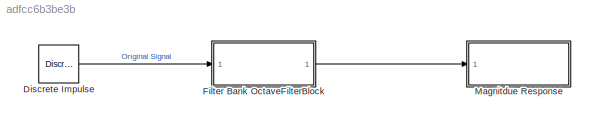
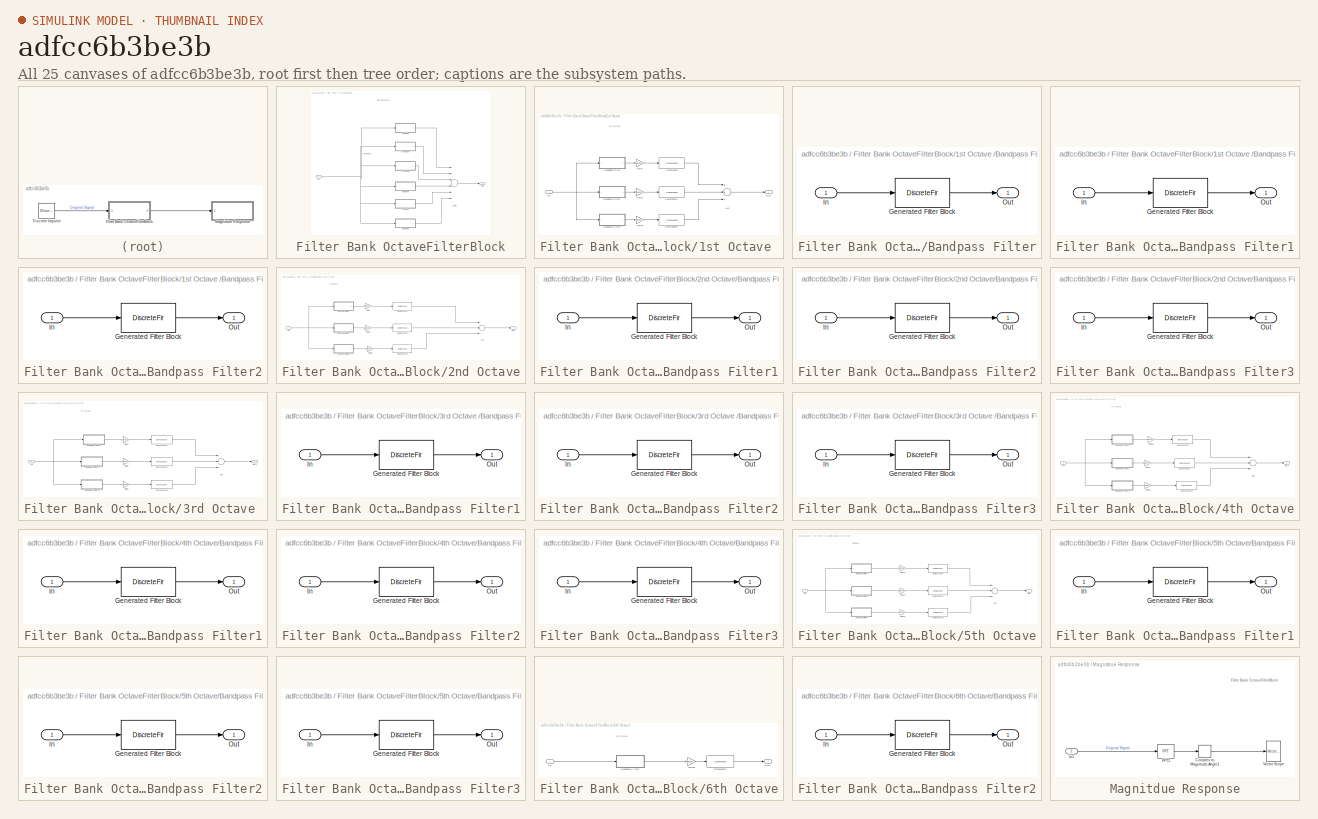
[diagram: thumbnail index - all 25 canvases of the model, root first then tree order]
MODEL slx_adfcc6b3be3b
KIND model
CONFIG AbsTol = auto
CONFIG EnableMultiTasking = off
CONFIG FixedStep = auto
CONFIG MaxStep = auto
CONFIG MinStep = auto
CONFIG RelTol = 1e-3
CONFIG SampleTimeConstraint = Unconstrained
CONFIG Solver = FixedStepDiscrete
CONFIG SolverName = FixedStepDiscrete
CONFIG StartTime = 0.0
CONFIG StopTime = 0.001
BLOCK [Reference] Discrete Impulse  REF=dspsrcs4/Discrete 
Impulse
  Ports = [0, 1]
  SourceBlock = dspsrcs4/Discrete \nImpulse
  SourceProductBaseCode = DS
  SourceProductName = DSP System Toolbox
  SourceType = Discrete Impulse
BLOCK [SubSystem] Filter Bank OctaveFilterBlock
  Ports = [1, 1]
  RequestExecContextInheritance = off
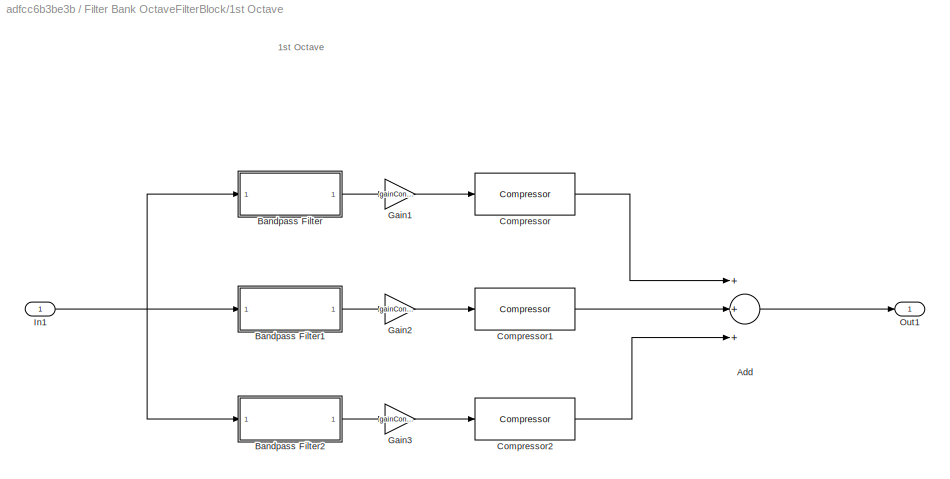
BLOCK [SubSystem] Filter Bank OctaveFilterBlock/1st Octave 
  Ports = [1, 1]
  RequestExecContextInheritance = off
BLOCK [Sum] Filter Bank OctaveFilterBlock/1st Octave /Add
  InputSameDT = off
  Inputs = +++
  OutDataTypeStr = Inherit: Inherit via internal rule
  Ports = [3, 1]
  SaturateOnIntegerOverflow = off
BLOCK [SubSystem] Filter Bank OctaveFilterBlock/1st Octave /Bandpass Filter
  CopyFcn = fdesignblkfcn(gcbh, {'CopyFcn'});
  DialogController = fdesignblkfcn
  InitFcn = fdesignblkfcn(gcbh, {'InitFcn'});
  Ports = [1, 1]
  RequestExecContextInheritance = off
  UserDataPersistent = on
BLOCK [DiscreteFir] Filter Bank OctaveFilterBlock/1st Octave /Bandpass Filter/Generated Filter Block
  Coefficients = [-0.000965498318512495964 0.00026458231611835569 0.000231623401463489461 0.000203518242535700831 0.000179319644531994205 0.000158734232687330533 0.000140983502414830728 0.000125924668649736487 0.000112905791154907934 0.000101901390265768797 9.23442832353972624e-05 8.43013348668057439e-05 7.72643068416356072e-05 7.13732098377806243e-05 6.61572888644548139e-05 6.18209253154341663e-05 5.7909419238867...<+37428ch>
  InputPortMap = u0
  InputProcessing = Columns as channels (frame based)
  OutputPortMap = o0
  Ports = [1, 1]
  Tag = BlockMethodSubSystem
BLOCK [Inport] Filter Bank OctaveFilterBlock/1st Octave /Bandpass Filter/In
  IconDisplay = Port number
BLOCK [Outport] Filter Bank OctaveFilterBlock/1st Octave /Bandpass Filter/Out
  IconDisplay = Port number
BLOCK [SubSystem] Filter Bank OctaveFilterBlock/1st Octave /Bandpass Filter1
  CopyFcn = fdesignblkfcn(gcbh, {'CopyFcn'});
  DialogController = fdesignblkfcn
  InitFcn = fdesignblkfcn(gcbh, {'InitFcn'});
  Ports = [1, 1]
  RequestExecContextInheritance = off
  UserDataPersistent = on
BLOCK [DiscreteFir] Filter Bank OctaveFilterBlock/1st Octave /Bandpass Filter1/Generated Filter Block
  Coefficients = [-0.00101787279958225909 0.000198503788152936327 0.000180849708624848351 0.000165277272308070729 0.000151535612503824981 0.000139429917176352739 0.000128755510149219238 0.000119356656733535772 0.000111068509948276383 0.000103768555082284445 9.73202868443811029e-05 9.1629231799501441e-05 8.65826306710652631e-05 8.21084111813028672e-05 7.81099656583409085e-05 7.45360955832141605e-05 7.13056596948040...<+29772ch>
  InputPortMap = u0
  InputProcessing = Columns as channels (frame based)
  OutputPortMap = o0
  Ports = [1, 1]
  Tag = BlockMethodSubSystem
BLOCK [Inport] Filter Bank OctaveFilterBlock/1st Octave /Bandpass Filter1/In
  IconDisplay = Port number
BLOCK [Outport] Filter Bank OctaveFilterBlock/1st Octave /Bandpass Filter1/Out
  IconDisplay = Port number
BLOCK [SubSystem] Filter Bank OctaveFilterBlock/1st Octave /Bandpass Filter2
  CopyFcn = fdesignblkfcn(gcbh, {'CopyFcn'});
  DialogController = fdesignblkfcn
  InitFcn = fdesignblkfcn(gcbh, {'InitFcn'});
  Ports = [1, 1]
  RequestExecContextInheritance = off
  UserDataPersistent = on
BLOCK [DiscreteFir] Filter Bank OctaveFilterBlock/1st Octave /Bandpass Filter2/Generated Filter Block
  Coefficients = [-0.00101416789910272029 0.000204892991167054982 0.00018643375910977185 0.000170221719820302372 0.000156293805338947794 0.000144043211207750457 0.00013356975305157335 0.000124317480341698202 0.000116439048644577815 0.000109413982713282959 0.000103444852481343364 9.80328796810005004e-05 9.34239991323640049e-05 8.91325902264538116e-05 8.5450085321828626e-05 8.18905923547019006e-05 7.8792219888243112...<+23658ch>
  InputPortMap = u0
  InputProcessing = Columns as channels (frame based)
  OutputPortMap = o0
  Ports = [1, 1]
  Tag = BlockMethodSubSystem
BLOCK [Inport] Filter Bank OctaveFilterBlock/1st Octave /Bandpass Filter2/In
  IconDisplay = Port number
BLOCK [Outport] Filter Bank OctaveFilterBlock/1st Octave /Bandpass Filter2/Out
  IconDisplay = Port number
BLOCK [Reference] Filter Bank OctaveFilterBlock/1st Octave /Compressor  REF=audiodynamicrange/Compressor
  Ports = [1, 1]
  SourceBlock = audiodynamicrange/Compressor
  SourceProductBaseCode = AU
  SourceProductName = Audio System Toolbox
  SourceType = audio.simulink.DynamicRangeCompressor
BLOCK [Reference] Filter Bank OctaveFilterBlock/1st Octave /Compressor1  REF=audiodynamicrange/Compressor
  Ports = [1, 1]
  SourceBlock = audiodynamicrange/Compressor
  SourceProductBaseCode = AU
  SourceProductName = Audio System Toolbox
  SourceType = audio.simulink.DynamicRangeCompressor
BLOCK [Reference] Filter Bank OctaveFilterBlock/1st Octave /Compressor2  REF=audiodynamicrange/Compressor
  Ports = [1, 1]
  SourceBlock = audiodynamicrange/Compressor
  SourceProductBaseCode = AU
  SourceProductName = Audio System Toolbox
  SourceType = audio.simulink.DynamicRangeCompressor
BLOCK [Gain] Filter Bank OctaveFilterBlock/1st Octave /Gain1
  Gain = gainConsts(1)
  OutDataTypeStr = Inherit: Inherit via internal rule
  ParamDataTypeStr = Inherit: Inherit via internal rule
  SaturateOnIntegerOverflow = off
BLOCK [Gain] Filter Bank OctaveFilterBlock/1st Octave /Gain2
  Gain = gainConsts(2)
  OutDataTypeStr = Inherit: Inherit via internal rule
  ParamDataTypeStr = Inherit: Inherit via internal rule
  SaturateOnIntegerOverflow = off
BLOCK [Gain] Filter Bank OctaveFilterBlock/1st Octave /Gain3
  Gain = gainConsts(3)
  OutDataTypeStr = Inherit: Inherit via internal rule
  ParamDataTypeStr = Inherit: Inherit via internal rule
  SaturateOnIntegerOverflow = off
BLOCK [Inport] Filter Bank OctaveFilterBlock/1st Octave /In1
  IconDisplay = Port number
BLOCK [Outport] Filter Bank OctaveFilterBlock/1st Octave /Out1
  IconDisplay = Port number
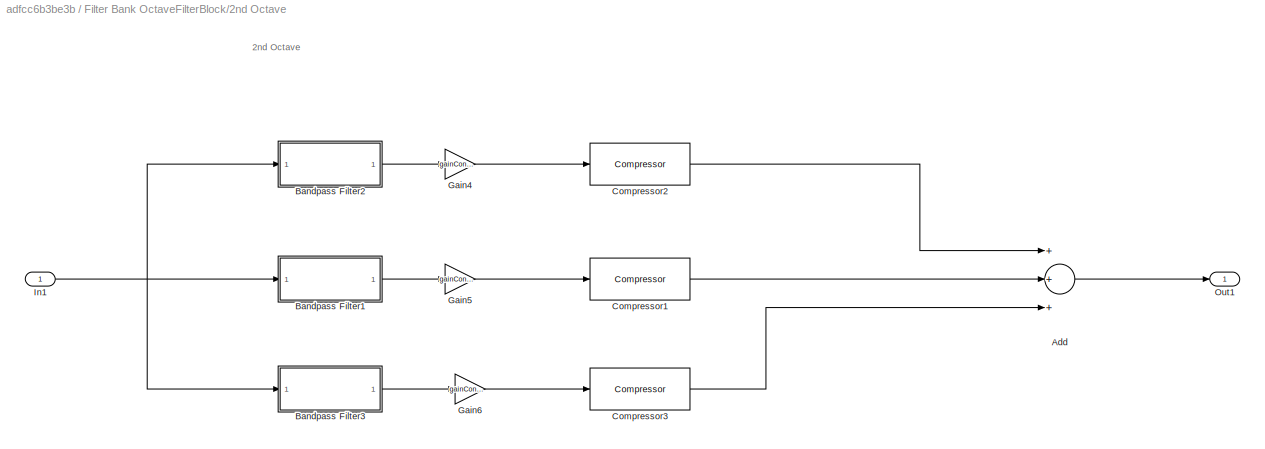
BLOCK [SubSystem] Filter Bank OctaveFilterBlock/2nd Octave
  Ports = [1, 1]
  RequestExecContextInheritance = off
BLOCK [Sum] Filter Bank OctaveFilterBlock/2nd Octave/Add
  InputSameDT = off
  Inputs = +++
  OutDataTypeStr = Inherit: Inherit via internal rule
  Ports = [3, 1]
  SaturateOnIntegerOverflow = off
BLOCK [SubSystem] Filter Bank OctaveFilterBlock/2nd Octave/Bandpass Filter1
  CopyFcn = fdesignblkfcn(gcbh, {'CopyFcn'});
  DialogController = fdesignblkfcn
  InitFcn = fdesignblkfcn(gcbh, {'InitFcn'});
  Ports = [1, 1]
  RequestExecContextInheritance = off
  UserDataPersistent = on
BLOCK [DiscreteFir] Filter Bank OctaveFilterBlock/2nd Octave/Bandpass Filter1/Generated Filter Block
  Coefficients = [-0.000783706796416928941 0.000537922684127367418 0.000394616152862346022 0.00029739444129408708 0.000230012910287379036 0.000184656722819048378 0.000152449675062142284 0.000130711081460789004 0.000114097041196869553 0.000102429214713842427 9.20473074203466066e-05 8.40287559014777936e-05 7.54999415199335538e-05 6.8213873331046497e-05 5.96188069977214661e-05 5.19088445550522273e-05 4.25865356797024...<+14495ch>
  InputPortMap = u0
  InputProcessing = Columns as channels (frame based)
  OutputPortMap = o0
  Ports = [1, 1]
  Tag = BlockMethodSubSystem
BLOCK [Inport] Filter Bank OctaveFilterBlock/2nd Octave/Bandpass Filter1/In
  IconDisplay = Port number
BLOCK [Outport] Filter Bank OctaveFilterBlock/2nd Octave/Bandpass Filter1/Out
  IconDisplay = Port number
BLOCK [SubSystem] Filter Bank OctaveFilterBlock/2nd Octave/Bandpass Filter2
  CopyFcn = fdesignblkfcn(gcbh, {'CopyFcn'});
  DialogController = fdesignblkfcn
  InitFcn = fdesignblkfcn(gcbh, {'InitFcn'});
  Ports = [1, 1]
  RequestExecContextInheritance = off
  UserDataPersistent = on
BLOCK [DiscreteFir] Filter Bank OctaveFilterBlock/2nd Octave/Bandpass Filter2/Generated Filter Block
  Coefficients = [-0.000852931710828707442 0.000436827204316977058 0.000344074344326309963 0.000275237964775445847 0.000222861923189115411 0.000184336838194069713 0.000154625398111186193 0.000132991590141595803 0.000115765019589351287 0.000103310511118317062 9.27175537168431832e-05 8.50280987928911988e-05 7.77159858712005505e-05 7.22907441503318777e-05 6.63603171253037815e-05 6.18300951235181348e-05 5.621529042197...<+18419ch>
  InputPortMap = u0
  InputProcessing = Columns as channels (frame based)
  OutputPortMap = o0
  Ports = [1, 1]
  Tag = BlockMethodSubSystem
BLOCK [Inport] Filter Bank OctaveFilterBlock/2nd Octave/Bandpass Filter2/In
  IconDisplay = Port number
BLOCK [Outport] Filter Bank OctaveFilterBlock/2nd Octave/Bandpass Filter2/Out
  IconDisplay = Port number
BLOCK [SubSystem] Filter Bank OctaveFilterBlock/2nd Octave/Bandpass Filter3
  CopyFcn = fdesignblkfcn(gcbh, {'CopyFcn'});
  DialogController = fdesignblkfcn
  InitFcn = fdesignblkfcn(gcbh, {'InitFcn'});
  Ports = [1, 1]
  RequestExecContextInheritance = off
  UserDataPersistent = on
BLOCK [DiscreteFir] Filter Bank OctaveFilterBlock/2nd Octave/Bandpass Filter3/Generated Filter Block
  Coefficients = [-0.00082721206109776348 0.000498577265597032046 0.00038286548804366573 0.000302156917694132421 0.000245467706930349193 0.000205662328875986025 0.000176843465146996103 0.000155560487498069156 0.000138551228948929038 0.000124352365324364392 0.000111093305797289876 9.84205063728690877e-05 8.52057776634200775e-05 7.17613150397636377e-05 5.73401990858657569e-05 4.27141405246382697e-05 2.72640909784712...<+11455ch>
  InputPortMap = u0
  InputProcessing = Columns as channels (frame based)
  OutputPortMap = o0
  Ports = [1, 1]
  Tag = BlockMethodSubSystem
BLOCK [Inport] Filter Bank OctaveFilterBlock/2nd Octave/Bandpass Filter3/In
  IconDisplay = Port number
BLOCK [Outport] Filter Bank OctaveFilterBlock/2nd Octave/Bandpass Filter3/Out
  IconDisplay = Port number
BLOCK [Reference] Filter Bank OctaveFilterBlock/2nd Octave/Compressor1  REF=audiodynamicrange/Compressor
  Ports = [1, 1]
  SourceBlock = audiodynamicrange/Compressor
  SourceProductBaseCode = AU
  SourceProductName = Audio System Toolbox
  SourceType = audio.simulink.DynamicRangeCompressor
BLOCK [Reference] Filter Bank OctaveFilterBlock/2nd Octave/Compressor2  REF=audiodynamicrange/Compressor
  Ports = [1, 1]
  SourceBlock = audiodynamicrange/Compressor
  SourceProductBaseCode = AU
  SourceProductName = Audio System Toolbox
  SourceType = audio.simulink.DynamicRangeCompressor
BLOCK [Reference] Filter Bank OctaveFilterBlock/2nd Octave/Compressor3  REF=audiodynamicrange/Compressor
  Ports = [1, 1]
  SourceBlock = audiodynamicrange/Compressor
  SourceProductBaseCode = AU
  SourceProductName = Audio System Toolbox
  SourceType = audio.simulink.DynamicRangeCompressor
BLOCK [Gain] Filter Bank OctaveFilterBlock/2nd Octave/Gain4
  Gain = gainConsts(4)
  OutDataTypeStr = Inherit: Inherit via internal rule
  ParamDataTypeStr = Inherit: Inherit via internal rule
  SaturateOnIntegerOverflow = off
BLOCK [Gain] Filter Bank OctaveFilterBlock/2nd Octave/Gain5
  Gain = gainConsts(5)
  OutDataTypeStr = Inherit: Inherit via internal rule
  ParamDataTypeStr = Inherit: Inherit via internal rule
  SaturateOnIntegerOverflow = off
BLOCK [Gain] Filter Bank OctaveFilterBlock/2nd Octave/Gain6
  Gain = gainConsts(6)
  OutDataTypeStr = Inherit: Inherit via internal rule
  ParamDataTypeStr = Inherit: Inherit via internal rule
  SaturateOnIntegerOverflow = off
BLOCK [Inport] Filter Bank OctaveFilterBlock/2nd Octave/In1
  IconDisplay = Port number
BLOCK [Outport] Filter Bank OctaveFilterBlock/2nd Octave/Out1
  IconDisplay = Port number
BLOCK [SubSystem] Filter Bank OctaveFilterBlock/3rd Octave 
  Ports = [1, 1]
  RequestExecContextInheritance = off
BLOCK [Sum] Filter Bank OctaveFilterBlock/3rd Octave /Add
  InputSameDT = off
  Inputs = +++
  OutDataTypeStr = Inherit: Inherit via internal rule
  Ports = [3, 1]
  SaturateOnIntegerOverflow = off
BLOCK [SubSystem] Filter Bank OctaveFilterBlock/3rd Octave /Bandpass Filter1
  CopyFcn = fdesignblkfcn(gcbh, {'CopyFcn'});
  DialogController = fdesignblkfcn
  InitFcn = fdesignblkfcn(gcbh, {'InitFcn'});
  Ports = [1, 1]
  RequestExecContextInheritance = off
  UserDataPersistent = on
BLOCK [DiscreteFir] Filter Bank OctaveFilterBlock/3rd Octave /Bandpass Filter1/Generated Filter Block
  Coefficients = [-0.000670763339168195375 0.000711373817600147586 0.000471714216633835792 0.000339019539196901295 0.000263181723134365024 0.0002155051120270755 0.000179869423769233499 0.000147519721647804266 0.00011427065337874312 7.8693025407013421e-05 4.11642200006459569e-05 3.07081477728533662e-06 -3.35582367466378574e-05 -6.65415448223953543e-05 -9.37364238756763918e-05 -0.000113443911790849384 -0.00012447179...<+7009ch>
  InputPortMap = u0
  InputProcessing = Columns as channels (frame based)
  OutputPortMap = o0
  Ports = [1, 1]
  Tag = BlockMethodSubSystem
BLOCK [Inport] Filter Bank OctaveFilterBlock/3rd Octave /Bandpass Filter1/In
  IconDisplay = Port number
BLOCK [Outport] Filter Bank OctaveFilterBlock/3rd Octave /Bandpass Filter1/Out
  IconDisplay = Port number
BLOCK [SubSystem] Filter Bank OctaveFilterBlock/3rd Octave /Bandpass Filter2
  CopyFcn = fdesignblkfcn(gcbh, {'CopyFcn'});
  DialogController = fdesignblkfcn
  InitFcn = fdesignblkfcn(gcbh, {'InitFcn'});
  Ports = [1, 1]
  RequestExecContextInheritance = off
  UserDataPersistent = on
BLOCK [DiscreteFir] Filter Bank OctaveFilterBlock/3rd Octave /Bandpass Filter2/Generated Filter Block
  Coefficients = [-0.00062871362181692893 0.000776730025492886121 0.000503720498316868165 0.000365788265617636638 0.000288507120565387664 0.000233743851301352994 0.000182230914206602803 0.000126731520233643643 6.59852723043873306e-05 3.38299153062227194e-06 -5.64195648328341941e-05 -0.00010736420882358059 -0.000144773396446944884 -0.000164643157685180359 -0.000166092876586916181 -0.000149812761783699525 -0.0001201...<+5477ch>
  InputPortMap = u0
  InputProcessing = Columns as channels (frame based)
  OutputPortMap = o0
  Ports = [1, 1]
  Tag = BlockMethodSubSystem
BLOCK [Inport] Filter Bank OctaveFilterBlock/3rd Octave /Bandpass Filter2/In
  IconDisplay = Port number
BLOCK [Outport] Filter Bank OctaveFilterBlock/3rd Octave /Bandpass Filter2/Out
  IconDisplay = Port number
BLOCK [SubSystem] Filter Bank OctaveFilterBlock/3rd Octave /Bandpass Filter3
  CopyFcn = fdesignblkfcn(gcbh, {'CopyFcn'});
  DialogController = fdesignblkfcn
  InitFcn = fdesignblkfcn(gcbh, {'InitFcn'});
  Ports = [1, 1]
  RequestExecContextInheritance = off
  UserDataPersistent = on
BLOCK [DiscreteFir] Filter Bank OctaveFilterBlock/3rd Octave /Bandpass Filter3/Generated Filter Block
  Coefficients = [-0.00078134744652945821 0.000572705466716356601 0.00042240702234122129 0.000325190406196364571 0.000262168745657189329 0.000219833716885516669 0.000189972205416862614 0.000166316704085915775 0.0001456705827173237 0.000125191677316116795 0.000104172710496140469 8.15046829929859905e-05 5.78233002935673885e-05 3.28412151436067393e-05 7.95432614791109945e-06 -1.68031167340804317e-05 -3.96537958597834...<+8987ch>
  InputPortMap = u0
  InputProcessing = Columns as channels (frame based)
  OutputPortMap = o0
  Ports = [1, 1]
  Tag = BlockMethodSubSystem
BLOCK [Inport] Filter Bank OctaveFilterBlock/3rd Octave /Bandpass Filter3/In
  IconDisplay = Port number
BLOCK [Outport] Filter Bank OctaveFilterBlock/3rd Octave /Bandpass Filter3/Out
  IconDisplay = Port number
BLOCK [Reference] Filter Bank OctaveFilterBlock/3rd Octave /Compressor1  REF=audiodynamicrange/Compressor
  Ports = [1, 1]
  SourceBlock = audiodynamicrange/Compressor
  SourceProductBaseCode = AU
  SourceProductName = Audio System Toolbox
  SourceType = audio.simulink.DynamicRangeCompressor
BLOCK [Reference] Filter Bank OctaveFilterBlock/3rd Octave /Compressor2  REF=audiodynamicrange/Compressor
  Ports = [1, 1]
  SourceBlock = audiodynamicrange/Compressor
  SourceProductBaseCode = AU
  SourceProductName = Audio System Toolbox
  SourceType = audio.simulink.DynamicRangeCompressor
BLOCK [Reference] Filter Bank OctaveFilterBlock/3rd Octave /Compressor3  REF=audiodynamicrange/Compressor
  Ports = [1, 1]
  SourceBlock = audiodynamicrange/Compressor
  SourceProductBaseCode = AU
  SourceProductName = Audio System Toolbox
  SourceType = audio.simulink.DynamicRangeCompressor
BLOCK [Gain] Filter Bank OctaveFilterBlock/3rd Octave /Gain7
  Gain = gainConsts(7)
  OutDataTypeStr = Inherit: Inherit via internal rule
  ParamDataTypeStr = Inherit: Inherit via internal rule
  SaturateOnIntegerOverflow = off
BLOCK [Gain] Filter Bank OctaveFilterBlock/3rd Octave /Gain8
  Gain = gainConsts(8)
  OutDataTypeStr = Inherit: Inherit via internal rule
  ParamDataTypeStr = Inherit: Inherit via internal rule
  SaturateOnIntegerOverflow = off
BLOCK [Gain] Filter Bank OctaveFilterBlock/3rd Octave /Gain9
  Gain = gainConsts(9)
  OutDataTypeStr = Inherit: Inherit via internal rule
  ParamDataTypeStr = Inherit: Inherit via internal rule
  SaturateOnIntegerOverflow = off
BLOCK [Inport] Filter Bank OctaveFilterBlock/3rd Octave /In1
  IconDisplay = Port number
BLOCK [Outport] Filter Bank OctaveFilterBlock/3rd Octave /Out1
  IconDisplay = Port number
BLOCK [SubSystem] Filter Bank OctaveFilterBlock/4th Octave
  Ports = [1, 1]
  RequestExecContextInheritance = off
BLOCK [Sum] Filter Bank OctaveFilterBlock/4th Octave/Add
  InputSameDT = off
  Inputs = +++
  OutDataTypeStr = Inherit: Inherit via internal rule
  Ports = [3, 1]
  SaturateOnIntegerOverflow = off
BLOCK [SubSystem] Filter Bank OctaveFilterBlock/4th Octave/Bandpass Filter1
  CopyFcn = fdesignblkfcn(gcbh, {'CopyFcn'});
  DialogController = fdesignblkfcn
  InitFcn = fdesignblkfcn(gcbh, {'InitFcn'});
  Ports = [1, 1]
  RequestExecContextInheritance = off
  UserDataPersistent = on
BLOCK [DiscreteFir] Filter Bank OctaveFilterBlock/4th Octave/Bandpass Filter1/Generated Filter Block
  Coefficients = [-0.000454453176726033392 0.00100209072976433335 0.000577743767428219091 0.000404799811635449453 0.000274000943715949725 0.000126721238126158544 -3.09107588489963229e-05 -0.000168089024932532773 -0.00025127648028608297 -0.000262355730299228349 -0.000206251383252625776 -0.000113375928641375363 -2.941355866253729e-05 -1.00511922988756781e-06 -5.56892663864632775e-05 -0.000188032124401235493 -0.00035...<+3299ch>
  InputPortMap = u0
  InputProcessing = Columns as channels (frame based)
  OutputPortMap = o0
  Ports = [1, 1]
  Tag = BlockMethodSubSystem
BLOCK [Inport] Filter Bank OctaveFilterBlock/4th Octave/Bandpass Filter1/In
  IconDisplay = Port number
BLOCK [Outport] Filter Bank OctaveFilterBlock/4th Octave/Bandpass Filter1/Out
  IconDisplay = Port number
BLOCK [SubSystem] Filter Bank OctaveFilterBlock/4th Octave/Bandpass Filter2
  CopyFcn = fdesignblkfcn(gcbh, {'CopyFcn'});
  DialogController = fdesignblkfcn
  InitFcn = fdesignblkfcn(gcbh, {'InitFcn'});
  Ports = [1, 1]
  RequestExecContextInheritance = off
  UserDataPersistent = on
BLOCK [DiscreteFir] Filter Bank OctaveFilterBlock/4th Octave/Bandpass Filter2/Generated Filter Block
  Coefficients = [-0.000582792899616266734 0.000847639262584038138 0.000544043694266977264 0.000402630281143150277 0.000315553121824535966 0.000234456607632118767 0.000142724162128202354 4.15998276243866795e-05 -5.83548231744570356e-05 -0.000142891803138543949 -0.000198931389987919518 -0.000218262749570431107 -0.000200420808465260188 -0.000153163130694580128 -9.12316156174994904e-05 -3.40276900297159881e-05 -6.652...<+4271ch>
  InputPortMap = u0
  InputProcessing = Columns as channels (frame based)
  OutputPortMap = o0
  Ports = [1, 1]
  Tag = BlockMethodSubSystem
BLOCK [Inport] Filter Bank OctaveFilterBlock/4th Octave/Bandpass Filter2/In
  IconDisplay = Port number
BLOCK [Outport] Filter Bank OctaveFilterBlock/4th Octave/Bandpass Filter2/Out
  IconDisplay = Port number
BLOCK [SubSystem] Filter Bank OctaveFilterBlock/4th Octave/Bandpass Filter3
  CopyFcn = fdesignblkfcn(gcbh, {'CopyFcn'});
  DialogController = fdesignblkfcn
  InitFcn = fdesignblkfcn(gcbh, {'InitFcn'});
  Ports = [1, 1]
  RequestExecContextInheritance = off
  UserDataPersistent = on
BLOCK [DiscreteFir] Filter Bank OctaveFilterBlock/4th Octave/Bandpass Filter3/Generated Filter Block
  Coefficients = [-0.000629316387866581724 -0.000224522978552017848 -3.11661475340736685e-05 0.000306746744702233087 0.00068470449739028061 0.00094364938346839513 0.000929617518006204758 0.000562220380704245466 -0.000110209117028901003 -0.000901837767546613783 -0.00153044300915453416 -0.00172091181433783966 -0.00131486143573243306 -0.000356032222672081344 0.000888820014453121227 0.00200567748138948468 0.0025702495...<+3199ch>
  InputPortMap = u0
  InputProcessing = Columns as channels (frame based)
  OutputPortMap = o0
  Ports = [1, 1]
  Tag = BlockMethodSubSystem
BLOCK [Inport] Filter Bank OctaveFilterBlock/4th Octave/Bandpass Filter3/In
  IconDisplay = Port number
BLOCK [Outport] Filter Bank OctaveFilterBlock/4th Octave/Bandpass Filter3/Out
  IconDisplay = Port number
BLOCK [Reference] Filter Bank OctaveFilterBlock/4th Octave/Compressor1  REF=audiodynamicrange/Compressor
  Ports = [1, 1]
  SourceBlock = audiodynamicrange/Compressor
  SourceProductBaseCode = AU
  SourceProductName = Audio System Toolbox
  SourceType = audio.simulink.DynamicRangeCompressor
BLOCK [Reference] Filter Bank OctaveFilterBlock/4th Octave/Compressor2  REF=audiodynamicrange/Compressor
  Ports = [1, 1]
  SourceBlock = audiodynamicrange/Compressor
  SourceProductBaseCode = AU
  SourceProductName = Audio System Toolbox
  SourceType = audio.simulink.DynamicRangeCompressor
BLOCK [Reference] Filter Bank OctaveFilterBlock/4th Octave/Compressor3  REF=audiodynamicrange/Compressor
  Ports = [1, 1]
  SourceBlock = audiodynamicrange/Compressor
  SourceProductBaseCode = AU
  SourceProductName = Audio System Toolbox
  SourceType = audio.simulink.DynamicRangeCompressor
BLOCK [Gain] Filter Bank OctaveFilterBlock/4th Octave/Gain10
  Gain = gainConsts(10)
  OutDataTypeStr = Inherit: Inherit via internal rule
  ParamDataTypeStr = Inherit: Inherit via internal rule
  SaturateOnIntegerOverflow = off
BLOCK [Gain] Filter Bank OctaveFilterBlock/4th Octave/Gain11
  Gain = gainConsts(11)
  OutDataTypeStr = Inherit: Inherit via internal rule
  ParamDataTypeStr = Inherit: Inherit via internal rule
  SaturateOnIntegerOverflow = off
BLOCK [Gain] Filter Bank OctaveFilterBlock/4th Octave/Gain12
  Gain = gainConsts(12)
  OutDataTypeStr = Inherit: Inherit via internal rule
  ParamDataTypeStr = Inherit: Inherit via internal rule
  SaturateOnIntegerOverflow = off
BLOCK [Inport] Filter Bank OctaveFilterBlock/4th Octave/In1
  IconDisplay = Port number
BLOCK [Outport] Filter Bank OctaveFilterBlock/4th Octave/Out1
  IconDisplay = Port number
BLOCK [SubSystem] Filter Bank OctaveFilterBlock/5th Octave
  Ports = [1, 1]
  RequestExecContextInheritance = off
BLOCK [Sum] Filter Bank OctaveFilterBlock/5th Octave/Add
  InputSameDT = off
  Inputs = +++
  OutDataTypeStr = Inherit: Inherit via internal rule
  Ports = [3, 1]
  SaturateOnIntegerOverflow = off
BLOCK [SubSystem] Filter Bank OctaveFilterBlock/5th Octave/Bandpass Filter1
  CopyFcn = fdesignblkfcn(gcbh, {'CopyFcn'});
  DialogController = fdesignblkfcn
  InitFcn = fdesignblkfcn(gcbh, {'InitFcn'});
  Ports = [1, 1]
  RequestExecContextInheritance = off
  UserDataPersistent = on
BLOCK [DiscreteFir] Filter Bank OctaveFilterBlock/5th Octave/Bandpass Filter1/Generated Filter Block
  Coefficients = [-0.000780562092373493998 -0.000460579804380529438 0.000321815907321661902 0.00136654057795647463 0.00164586046395609194 0.000458395890626756811 -0.00164688001120879049 -0.00294715260918239092 -0.00192044779780954698 0.00115249352183891766 0.00396612847709895081 0.0039386468941791479 0.00060854826510576567 -0.00357654648431802741 -0.0051388595108632874 -0.00265810811322122597 0.0018039482248356172...<+1875ch>
  InputPortMap = u0
  InputProcessing = Columns as channels (frame based)
  OutputPortMap = o0
  Ports = [1, 1]
  Tag = BlockMethodSubSystem
BLOCK [Inport] Filter Bank OctaveFilterBlock/5th Octave/Bandpass Filter1/In
  IconDisplay = Port number
BLOCK [Outport] Filter Bank OctaveFilterBlock/5th Octave/Bandpass Filter1/Out
  IconDisplay = Port number
BLOCK [SubSystem] Filter Bank OctaveFilterBlock/5th Octave/Bandpass Filter2
  CopyFcn = fdesignblkfcn(gcbh, {'CopyFcn'});
  DialogController = fdesignblkfcn
  InitFcn = fdesignblkfcn(gcbh, {'InitFcn'});
  Ports = [1, 1]
  RequestExecContextInheritance = off
  UserDataPersistent = on
BLOCK [DiscreteFir] Filter Bank OctaveFilterBlock/5th Octave/Bandpass Filter2/Generated Filter Block
  Coefficients = [-0.000925343559961780632 -0.000440776367735584208 0.00113758315299438751 0.00218469623965877966 0.000491945697895709031 -0.00283809680482847992 -0.00346395874608150783 0.000667719439518588836 0.00523393923012418529 0.00399336266047585573 -0.00257588248052108195 -0.00660139818943484419 -0.00277815418854420078 0.00409491421409043793 0.00541316682099637556 0.000696723542384927665 -0.0024624754808840...<+1415ch>
  InputPortMap = u0
  InputProcessing = Columns as channels (frame based)
  OutputPortMap = o0
  Ports = [1, 1]
  Tag = BlockMethodSubSystem
BLOCK [Inport] Filter Bank OctaveFilterBlock/5th Octave/Bandpass Filter2/In
  IconDisplay = Port number
BLOCK [Outport] Filter Bank OctaveFilterBlock/5th Octave/Bandpass Filter2/Out
  IconDisplay = Port number
BLOCK [SubSystem] Filter Bank OctaveFilterBlock/5th Octave/Bandpass Filter3
  CopyFcn = fdesignblkfcn(gcbh, {'CopyFcn'});
  DialogController = fdesignblkfcn
  InitFcn = fdesignblkfcn(gcbh, {'InitFcn'});
  Ports = [1, 1]
  RequestExecContextInheritance = off
  UserDataPersistent = on
BLOCK [DiscreteFir] Filter Bank OctaveFilterBlock/5th Octave/Bandpass Filter3/Generated Filter Block
  Coefficients = [-0.000685791749322017352 -0.000363768404902845184 7.91790087574406331e-06 0.00063846670536527679 0.00119327260530101178 0.00125059873899028597 0.000572959962685877684 -0.000664757594038333801 -0.00186329696509620842 -0.00227647057242357214 -0.0014571919208949504 0.000385588078012238564 0.00237986104834583909 0.0034028412708538929 0.00272629791689298594 0.000515098449740365358 -0.00215914696567241...<+2460ch>
  InputPortMap = u0
  InputProcessing = Columns as channels (frame based)
  OutputPortMap = o0
  Ports = [1, 1]
  Tag = BlockMethodSubSystem
BLOCK [Inport] Filter Bank OctaveFilterBlock/5th Octave/Bandpass Filter3/In
  IconDisplay = Port number
BLOCK [Outport] Filter Bank OctaveFilterBlock/5th Octave/Bandpass Filter3/Out
  IconDisplay = Port number
BLOCK [Reference] Filter Bank OctaveFilterBlock/5th Octave/Compressor1  REF=audiodynamicrange/Compressor
  Ports = [1, 1]
  SourceBlock = audiodynamicrange/Compressor
  SourceProductBaseCode = AU
  SourceProductName = Audio System Toolbox
  SourceType = audio.simulink.DynamicRangeCompressor
BLOCK [Reference] Filter Bank OctaveFilterBlock/5th Octave/Compressor2  REF=audiodynamicrange/Compressor
  Ports = [1, 1]
  SourceBlock = audiodynamicrange/Compressor
  SourceProductBaseCode = AU
  SourceProductName = Audio System Toolbox
  SourceType = audio.simulink.DynamicRangeCompressor
BLOCK [Reference] Filter Bank OctaveFilterBlock/5th Octave/Compressor3  REF=audiodynamicrange/Compressor
  Ports = [1, 1]
  SourceBlock = audiodynamicrange/Compressor
  SourceProductBaseCode = AU
  SourceProductName = Audio System Toolbox
  SourceType = audio.simulink.DynamicRangeCompressor
BLOCK [Gain] Filter Bank OctaveFilterBlock/5th Octave/Gain13 
  Gain = gainConsts(13)
  OutDataTypeStr = Inherit: Inherit via internal rule
  ParamDataTypeStr = Inherit: Inherit via internal rule
  SaturateOnIntegerOverflow = off
BLOCK [Gain] Filter Bank OctaveFilterBlock/5th Octave/Gain14
  Gain = gainConsts(14)
  OutDataTypeStr = Inherit: Inherit via internal rule
  ParamDataTypeStr = Inherit: Inherit via internal rule
  SaturateOnIntegerOverflow = off
BLOCK [Gain] Filter Bank OctaveFilterBlock/5th Octave/Gain15
  Gain = gainConsts(15)
  OutDataTypeStr = Inherit: Inherit via internal rule
  ParamDataTypeStr = Inherit: Inherit via internal rule
  SaturateOnIntegerOverflow = off
BLOCK [Inport] Filter Bank OctaveFilterBlock/5th Octave/In1
  IconDisplay = Port number
BLOCK [Outport] Filter Bank OctaveFilterBlock/5th Octave/Out1
  IconDisplay = Port number
BLOCK [SubSystem] Filter Bank OctaveFilterBlock/6th Octave
  Ports = [1, 1]
  RequestExecContextInheritance = off
BLOCK [SubSystem] Filter Bank OctaveFilterBlock/6th Octave/Bandpass Filter2
  CopyFcn = fdesignblkfcn(gcbh, {'CopyFcn'});
  DialogController = fdesignblkfcn
  InitFcn = fdesignblkfcn(gcbh, {'InitFcn'});
  Ports = [1, 1]
  RequestExecContextInheritance = off
  UserDataPersistent = on
BLOCK [DiscreteFir] Filter Bank OctaveFilterBlock/6th Octave/Bandpass Filter2/Generated Filter Block
  Coefficients = [-0.00114571218954327919 -3.49624041613449434e-05 0.00255453958360611242 0.001173009207292242 -0.00399674475347738291 -0.00304675804484750776 0.00505031464764223257 0.00569841589761186686 -0.00454799461959152877 -0.00754956591786638386 0.00268236923847222936 0.00710812554028526344 -0.000348762043233140882 -0.0026887440664377987 0.00021023553176279582 -0.00565075462926459098 -0.00525575714249528533...<+1029ch>
  InputPortMap = u0
  InputProcessing = Columns as channels (frame based)
  OutputPortMap = o0
  Ports = [1, 1]
  Tag = BlockMethodSubSystem
BLOCK [Inport] Filter Bank OctaveFilterBlock/6th Octave/Bandpass Filter2/In
  IconDisplay = Port number
BLOCK [Outport] Filter Bank OctaveFilterBlock/6th Octave/Bandpass Filter2/Out
  IconDisplay = Port number
BLOCK [Reference] Filter Bank OctaveFilterBlock/6th Octave/Compressor2  REF=audiodynamicrange/Compressor
  Ports = [1, 1]
  SourceBlock = audiodynamicrange/Compressor
  SourceProductBaseCode = AU
  SourceProductName = Audio System Toolbox
  SourceType = audio.simulink.DynamicRangeCompressor
BLOCK [Gain] Filter Bank OctaveFilterBlock/6th Octave/Gain16
  Gain = gainConsts(16)
  OutDataTypeStr = Inherit: Inherit via internal rule
  ParamDataTypeStr = Inherit: Inherit via internal rule
  SaturateOnIntegerOverflow = off
BLOCK [Inport] Filter Bank OctaveFilterBlock/6th Octave/In1
  IconDisplay = Port number
BLOCK [Outport] Filter Bank OctaveFilterBlock/6th Octave/Out1
  IconDisplay = Port number
BLOCK [Inport] Filter Bank OctaveFilterBlock/In1
  IconDisplay = Port number
BLOCK [Outport] Filter Bank OctaveFilterBlock/Out1
  IconDisplay = Port number
BLOCK [Sum] Filter Bank OctaveFilterBlock/Sum2
  InputSameDT = off
  Inputs = ++++++
  OutDataTypeStr = Inherit: Inherit via internal rule
  Ports = [6, 1]
  SaturateOnIntegerOverflow = off
BLOCK [SubSystem] Magnitdue Response
  Ports = [1]
  RequestExecContextInheritance = off
BLOCK [ComplexToMagnitudeAngle] Magnitdue Response/Complex to Magnitude-Angle1
  Output = Magnitude
  Ports = [1, 1]
BLOCK [Reference] Magnitdue Response/FFT1  REF=dspxfrm3/FFT
  Ports = [1, 1]
  SourceBlock = dspxfrm3/FFT
  SourceProductBaseCode = DS
  SourceProductName = DSP System Toolbox
  SourceType = FFT
BLOCK [Inport] Magnitdue Response/In1
  IconDisplay = Port number
BLOCK [Reference] Magnitdue Response/Vector Scope  REF=dspobslib/Vector
Scope
  Ports = [1]
  SourceBlock = dspobslib/Vector\nScope
  SourceProductBaseCode = DS
  SourceProductName = DSP System Toolbox
  SourceType = Vector Scope
ANNOTATION Filter Bank OctaveFilterBlock: Filter Bank Octave
ANNOTATION Filter Bank OctaveFilterBlock/1st Octave : 1st Octave
ANNOTATION Filter Bank OctaveFilterBlock/2nd Octave: 2nd Octave
ANNOTATION Filter Bank OctaveFilterBlock/3rd Octave : 3rd Octave
ANNOTATION Filter Bank OctaveFilterBlock/4th Octave: 4th Octave
ANNOTATION Filter Bank OctaveFilterBlock/5th Octave: 5th Octave
ANNOTATION Filter Bank OctaveFilterBlock/6th Octave: 6th Octave
ANNOTATION Magnitdue Response: Filter Bank OctaveFilterBlock
LINE Discrete Impulse:1 -> Filter Bank OctaveFilterBlock:1
LINE Filter Bank OctaveFilterBlock/1st Octave /Add:1 -> Filter Bank OctaveFilterBlock/1st Octave /Out1:1
LINE Filter Bank OctaveFilterBlock/1st Octave /Bandpass Filter1:1 -> Filter Bank OctaveFilterBlock/1st Octave /Gain2:1
LINE Filter Bank OctaveFilterBlock/1st Octave /Bandpass Filter2:1 -> Filter Bank OctaveFilterBlock/1st Octave /Gain3:1
LINE Filter Bank OctaveFilterBlock/1st Octave /Bandpass Filter:1 -> Filter Bank OctaveFilterBlock/1st Octave /Gain1:1
LINE Filter Bank OctaveFilterBlock/1st Octave /Compressor1:1 -> Filter Bank OctaveFilterBlock/1st Octave /Add:2
LINE Filter Bank OctaveFilterBlock/1st Octave /Compressor2:1 -> Filter Bank OctaveFilterBlock/1st Octave /Add:3
LINE Filter Bank OctaveFilterBlock/1st Octave /Compressor:1 -> Filter Bank OctaveFilterBlock/1st Octave /Add:1
LINE Filter Bank OctaveFilterBlock/1st Octave /Gain1:1 -> Filter Bank OctaveFilterBlock/1st Octave /Compressor:1
LINE Filter Bank OctaveFilterBlock/1st Octave /Gain2:1 -> Filter Bank OctaveFilterBlock/1st Octave /Compressor1:1
LINE Filter Bank OctaveFilterBlock/1st Octave /Gain3:1 -> Filter Bank OctaveFilterBlock/1st Octave /Compressor2:1
NET Filter Bank OctaveFilterBlock/1st Octave /In1:1 -> Filter Bank OctaveFilterBlock/1st Octave /Bandpass Filter1:1, Filter Bank OctaveFilterBlock/1st Octave /Bandpass Filter2:1, Filter Bank OctaveFilterBlock/1st Octave /Bandpass Filter:1
LINE Filter Bank OctaveFilterBlock/1st Octave :1 -> Filter Bank OctaveFilterBlock/Sum2:1
LINE Filter Bank OctaveFilterBlock/2nd Octave/Add:1 -> Filter Bank OctaveFilterBlock/2nd Octave/Out1:1
LINE Filter Bank OctaveFilterBlock/2nd Octave/Bandpass Filter1:1 -> Filter Bank OctaveFilterBlock/2nd Octave/Gain5:1
LINE Filter Bank OctaveFilterBlock/2nd Octave/Bandpass Filter2:1 -> Filter Bank OctaveFilterBlock/2nd Octave/Gain4:1
LINE Filter Bank OctaveFilterBlock/2nd Octave/Bandpass Filter3:1 -> Filter Bank OctaveFilterBlock/2nd Octave/Gain6:1
LINE Filter Bank OctaveFilterBlock/2nd Octave/Compressor1:1 -> Filter Bank OctaveFilterBlock/2nd Octave/Add:2
LINE Filter Bank OctaveFilterBlock/2nd Octave/Compressor2:1 -> Filter Bank OctaveFilterBlock/2nd Octave/Add:1
LINE Filter Bank OctaveFilterBlock/2nd Octave/Compressor3:1 -> Filter Bank OctaveFilterBlock/2nd Octave/Add:3
LINE Filter Bank OctaveFilterBlock/2nd Octave/Gain4:1 -> Filter Bank OctaveFilterBlock/2nd Octave/Compressor2:1
LINE Filter Bank OctaveFilterBlock/2nd Octave/Gain5:1 -> Filter Bank OctaveFilterBlock/2nd Octave/Compressor1:1
LINE Filter Bank OctaveFilterBlock/2nd Octave/Gain6:1 -> Filter Bank OctaveFilterBlock/2nd Octave/Compressor3:1
NET Filter Bank OctaveFilterBlock/2nd Octave/In1:1 -> Filter Bank OctaveFilterBlock/2nd Octave/Bandpass Filter1:1, Filter Bank OctaveFilterBlock/2nd Octave/Bandpass Filter2:1, Filter Bank OctaveFilterBlock/2nd Octave/Bandpass Filter3:1
LINE Filter Bank OctaveFilterBlock/2nd Octave:1 -> Filter Bank OctaveFilterBlock/Sum2:2
LINE Filter Bank OctaveFilterBlock/3rd Octave /Add:1 -> Filter Bank OctaveFilterBlock/3rd Octave /Out1:1
LINE Filter Bank OctaveFilterBlock/3rd Octave /Bandpass Filter1:1 -> Filter Bank OctaveFilterBlock/3rd Octave /Gain8:1
LINE Filter Bank OctaveFilterBlock/3rd Octave /Bandpass Filter2:1 -> Filter Bank OctaveFilterBlock/3rd Octave /Gain9:1
LINE Filter Bank OctaveFilterBlock/3rd Octave /Bandpass Filter3:1 -> Filter Bank OctaveFilterBlock/3rd Octave /Gain7:1
LINE Filter Bank OctaveFilterBlock/3rd Octave /Compressor1:1 -> Filter Bank OctaveFilterBlock/3rd Octave /Add:2
LINE Filter Bank OctaveFilterBlock/3rd Octave /Compressor2:1 -> Filter Bank OctaveFilterBlock/3rd Octave /Add:1
LINE Filter Bank OctaveFilterBlock/3rd Octave /Compressor3:1 -> Filter Bank OctaveFilterBlock/3rd Octave /Add:3
LINE Filter Bank OctaveFilterBlock/3rd Octave /Gain7:1 -> Filter Bank OctaveFilterBlock/3rd Octave /Compressor2:1
LINE Filter Bank OctaveFilterBlock/3rd Octave /Gain8:1 -> Filter Bank OctaveFilterBlock/3rd Octave /Compressor1:1
LINE Filter Bank OctaveFilterBlock/3rd Octave /Gain9:1 -> Filter Bank OctaveFilterBlock/3rd Octave /Compressor3:1
NET Filter Bank OctaveFilterBlock/3rd Octave /In1:1 -> Filter Bank OctaveFilterBlock/3rd Octave /Bandpass Filter1:1, Filter Bank OctaveFilterBlock/3rd Octave /Bandpass Filter2:1, Filter Bank OctaveFilterBlock/3rd Octave /Bandpass Filter3:1
LINE Filter Bank OctaveFilterBlock/3rd Octave :1 -> Filter Bank OctaveFilterBlock/Sum2:3
LINE Filter Bank OctaveFilterBlock/4th Octave/Add:1 -> Filter Bank OctaveFilterBlock/4th Octave/Out1:1
LINE Filter Bank OctaveFilterBlock/4th Octave/Bandpass Filter1:1 -> Filter Bank OctaveFilterBlock/4th Octave/Gain11:1
LINE Filter Bank OctaveFilterBlock/4th Octave/Bandpass Filter2:1 -> Filter Bank OctaveFilterBlock/4th Octave/Gain10:1
LINE Filter Bank OctaveFilterBlock/4th Octave/Bandpass Filter3:1 -> Filter Bank OctaveFilterBlock/4th Octave/Gain12:1
LINE Filter Bank OctaveFilterBlock/4th Octave/Compressor1:1 -> Filter Bank OctaveFilterBlock/4th Octave/Add:2
LINE Filter Bank OctaveFilterBlock/4th Octave/Compressor2:1 -> Filter Bank OctaveFilterBlock/4th Octave/Add:1
LINE Filter Bank OctaveFilterBlock/4th Octave/Compressor3:1 -> Filter Bank OctaveFilterBlock/4th Octave/Add:3
LINE Filter Bank OctaveFilterBlock/4th Octave/Gain10:1 -> Filter Bank OctaveFilterBlock/4th Octave/Compressor2:1
LINE Filter Bank OctaveFilterBlock/4th Octave/Gain11:1 -> Filter Bank OctaveFilterBlock/4th Octave/Compressor1:1
LINE Filter Bank OctaveFilterBlock/4th Octave/Gain12:1 -> Filter Bank OctaveFilterBlock/4th Octave/Compressor3:1
NET Filter Bank OctaveFilterBlock/4th Octave/In1:1 -> Filter Bank OctaveFilterBlock/4th Octave/Bandpass Filter1:1, Filter Bank OctaveFilterBlock/4th Octave/Bandpass Filter2:1, Filter Bank OctaveFilterBlock/4th Octave/Bandpass Filter3:1
LINE Filter Bank OctaveFilterBlock/4th Octave:1 -> Filter Bank OctaveFilterBlock/Sum2:4
LINE Filter Bank OctaveFilterBlock/5th Octave/Add:1 -> Filter Bank OctaveFilterBlock/5th Octave/Out1:1
LINE Filter Bank OctaveFilterBlock/5th Octave/Bandpass Filter1:1 -> Filter Bank OctaveFilterBlock/5th Octave/Gain14:1
LINE Filter Bank OctaveFilterBlock/5th Octave/Bandpass Filter2:1 -> Filter Bank OctaveFilterBlock/5th Octave/Gain15:1
LINE Filter Bank OctaveFilterBlock/5th Octave/Bandpass Filter3:1 -> Filter Bank OctaveFilterBlock/5th Octave/Gain13 :1
LINE Filter Bank OctaveFilterBlock/5th Octave/Compressor1:1 -> Filter Bank OctaveFilterBlock/5th Octave/Add:2
LINE Filter Bank OctaveFilterBlock/5th Octave/Compressor2:1 -> Filter Bank OctaveFilterBlock/5th Octave/Add:1
LINE Filter Bank OctaveFilterBlock/5th Octave/Compressor3:1 -> Filter Bank OctaveFilterBlock/5th Octave/Add:3
LINE Filter Bank OctaveFilterBlock/5th Octave/Gain13 :1 -> Filter Bank OctaveFilterBlock/5th Octave/Compressor2:1
LINE Filter Bank OctaveFilterBlock/5th Octave/Gain14:1 -> Filter Bank OctaveFilterBlock/5th Octave/Compressor1:1
LINE Filter Bank OctaveFilterBlock/5th Octave/Gain15:1 -> Filter Bank OctaveFilterBlock/5th Octave/Compressor3:1
NET Filter Bank OctaveFilterBlock/5th Octave/In1:1 -> Filter Bank OctaveFilterBlock/5th Octave/Bandpass Filter1:1, Filter Bank OctaveFilterBlock/5th Octave/Bandpass Filter2:1, Filter Bank OctaveFilterBlock/5th Octave/Bandpass Filter3:1
LINE Filter Bank OctaveFilterBlock/5th Octave:1 -> Filter Bank OctaveFilterBlock/Sum2:5
LINE Filter Bank OctaveFilterBlock/6th Octave/Bandpass Filter2:1 -> Filter Bank OctaveFilterBlock/6th Octave/Gain16:1
LINE Filter Bank OctaveFilterBlock/6th Octave/Compressor2:1 -> Filter Bank OctaveFilterBlock/6th Octave/Out1:1
LINE Filter Bank OctaveFilterBlock/6th Octave/Gain16:1 -> Filter Bank OctaveFilterBlock/6th Octave/Compressor2:1
LINE Filter Bank OctaveFilterBlock/6th Octave/In1:1 -> Filter Bank OctaveFilterBlock/6th Octave/Bandpass Filter2:1
LINE Filter Bank OctaveFilterBlock/6th Octave:1 -> Filter Bank OctaveFilterBlock/Sum2:6
NET Filter Bank OctaveFilterBlock/In1:1 -> Filter Bank OctaveFilterBlock/1st Octave :1, Filter Bank OctaveFilterBlock/2nd Octave:1, Filter Bank OctaveFilterBlock/3rd Octave :1, Filter Bank OctaveFilterBlock/4th Octave:1, Filter Bank OctaveFilterBlock/5th Octave:1, Filter Bank OctaveFilterBlock/6th Octave:1
LINE Filter Bank OctaveFilterBlock/Sum2:1 -> Filter Bank OctaveFilterBlock/Out1:1
LINE Filter Bank OctaveFilterBlock:1 -> Magnitdue Response:1
LINE Magnitdue Response/Complex to Magnitude-Angle1:1 -> Magnitdue Response/Vector Scope:1
LINE Magnitdue Response/FFT1:1 -> Magnitdue Response/Complex to Magnitude-Angle1:1
LINE Magnitdue Response/In1:1 -> Magnitdue Response/FFT1:1
note: NET lines group one-source signal fan-out (src -> all destinations, sorted); 1:1 wires keep LINE
